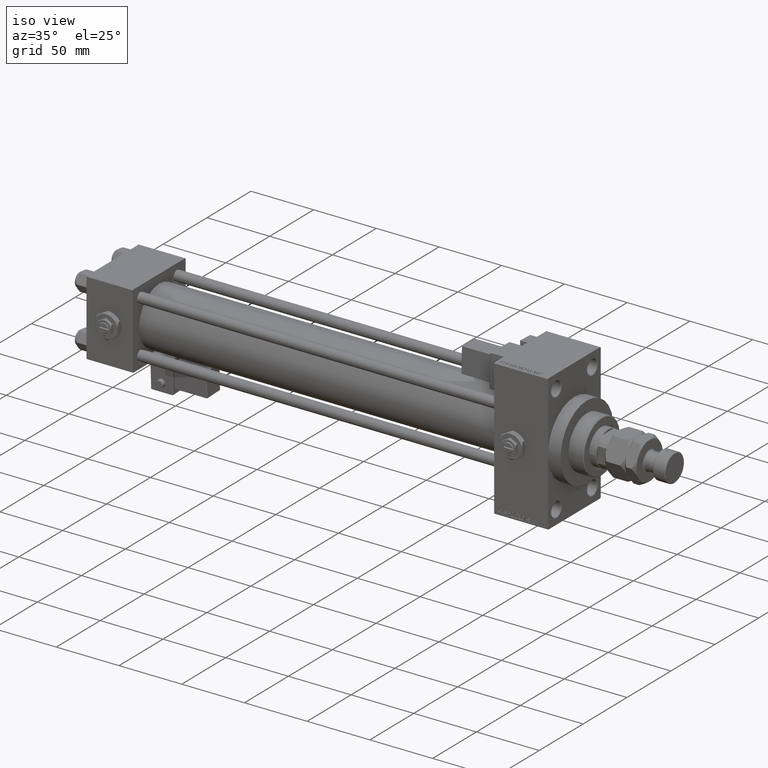
[diagram: clean part render]
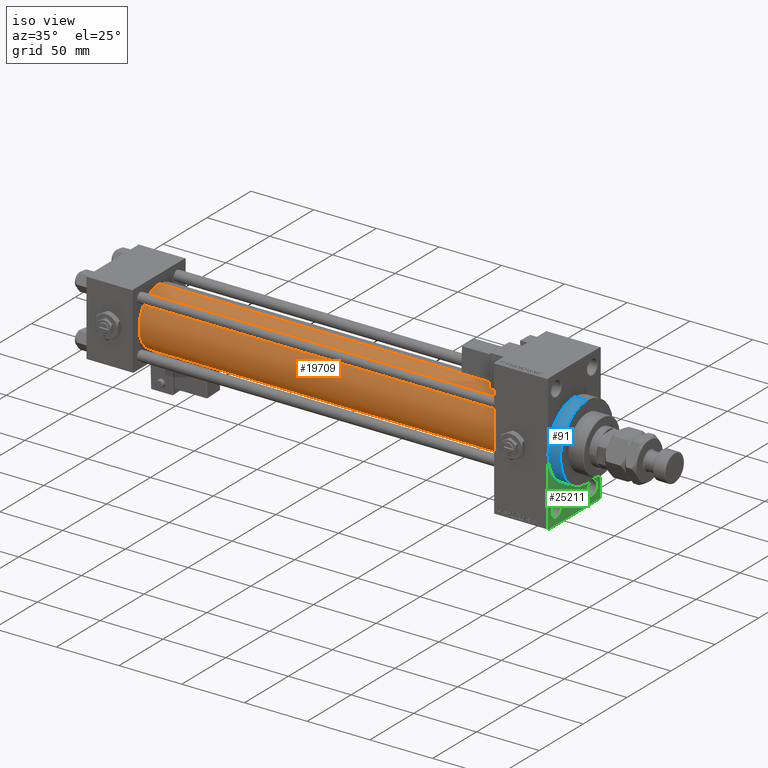
[diagram: same view with three faces highlighted in distinct colors, each labeled with its STEP entity id]
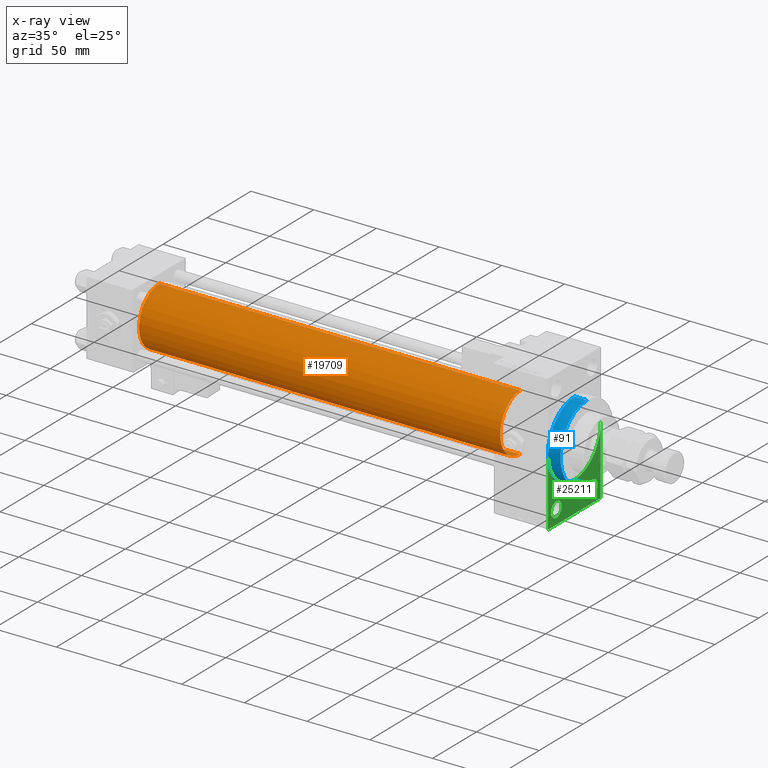
[diagram: x-ray of the same camera — body ghosted, the three highlighted faces saturated]
A machine part, iso view with three faces highlighted in distinct colors.
The next image is the same camera in x-ray (body ghosted, the three faces saturated) — at least one of them is partly hidden behind the body in this view.
Their STEP definitions:

[orange] entity #19709 — the highlighted cylindrical surface (edge-blend (fillet) strip) has radius 23 mm, axis along (-1, -0, -0).
#1526 = VERTEX_POINT ( 'NONE', #37944 ) ;
#1814 = AXIS2_PLACEMENT_3D ( 'NONE', #36916, #8387, #41212 ) ;
#4373 = VERTEX_POINT ( 'NONE', #14296 ) ;
#4509 = EDGE_CURVE ( 'NONE', #43570, #22785, #40632, .T. ) ;
#4996 = LINE ( 'NONE', #25175, #9830 ) ;
#7609 = FACE_OUTER_BOUND ( 'NONE', #17370, .T. ) ;
#8387 = DIRECTION ( 'NONE',  ( -1.000000000000000000, -0.000000000000000000, -0.000000000000000000 ) ) ;
#9403 = CARTESIAN_POINT ( 'NONE',  ( 324.9999999999999432, -2.602085213965210642E-15, 23.00000000000000000 ) ) ;
#9830 = VECTOR ( 'NONE', #37571, 1000.000000000000000 ) ;
#9858 = ORIENTED_EDGE ( 'NONE', *, *, #15599, .F. ) ;
#10787 = CIRCLE ( 'NONE', #40000, 23.00000000000000000 ) ;
#10871 = ORIENTED_EDGE ( 'NONE', *, *, #31379, .F. ) ;
#11706 = CARTESIAN_POINT ( 'NONE',  ( 36.99999999999997868, -2.602085213965210642E-15, 23.00000000000000000 ) ) ;
#14296 = CARTESIAN_POINT ( 'NONE',  ( 324.9999999999999432, 2.146024240737016609E-16, -23.00000000000000000 ) ) ;
#15599 = EDGE_CURVE ( 'NONE', #43570, #4373, #48038, .T. ) ;
#15659 = DIRECTION ( 'NONE',  ( 0.000000000000000000, 0.000000000000000000, 1.000000000000000000 ) ) ;
#17370 = EDGE_LOOP ( 'NONE', ( #10871, #9858, #39772, #36568 ) ) ;
#17969 = AXIS2_PLACEMENT_3D ( 'NONE', #18846, #26402, #18592 ) ;
#18592 = DIRECTION ( 'NONE',  ( 0.000000000000000000, 0.000000000000000000, -1.000000000000000000 ) ) ;
#18846 = CARTESIAN_POINT ( 'NONE',  ( 324.9999999999999432, -2.602085213965210642E-15, 0.000000000000000000 ) ) ;
#19709 = ADVANCED_FACE ( 'NONE', ( #7609 ), #28309, .T. ) ;
#22785 = VERTEX_POINT ( 'NONE', #11706 ) ;
#25175 = CARTESIAN_POINT ( 'NONE',  ( 324.9999999999999432, 2.146024240737016609E-16, -23.00000000000000000 ) ) ;
#26402 = DIRECTION ( 'NONE',  ( 1.000000000000000000, 0.000000000000000000, 0.000000000000000000 ) ) ;
#27988 = CARTESIAN_POINT ( 'NONE',  ( 324.9999999999999432, -2.602085213965210642E-15, 23.00000000000000000 ) ) ;
#28309 = CYLINDRICAL_SURFACE ( 'NONE', #1814, 23.00000000000000000 ) ;
#31379 = EDGE_CURVE ( 'NONE', #4373, #1526, #4996, .T. ) ;
#33525 = DIRECTION ( 'NONE',  ( -1.000000000000000000, -0.000000000000000000, -0.000000000000000000 ) ) ;
#33595 = EDGE_CURVE ( 'NONE', #22785, #1526, #10787, .T. ) ;
#36568 = ORIENTED_EDGE ( 'NONE', *, *, #33595, .T. ) ;
#36916 = CARTESIAN_POINT ( 'NONE',  ( 324.9999999999999432, -2.602085213965210642E-15, 0.000000000000000000 ) ) ;
#37571 = DIRECTION ( 'NONE',  ( -1.000000000000000000, -0.000000000000000000, -0.000000000000000000 ) ) ;
#37944 = CARTESIAN_POINT ( 'NONE',  ( 36.99999999999997868, 2.146024240737016609E-16, -23.00000000000000000 ) ) ;
#39093 = DIRECTION ( 'NONE',  ( 1.000000000000000000, -0.000000000000000000, 0.000000000000000000 ) ) ;
#39772 = ORIENTED_EDGE ( 'NONE', *, *, #4509, .T. ) ;
#40000 = AXIS2_PLACEMENT_3D ( 'NONE', #47927, #39093, #15659 ) ;
#40632 = LINE ( 'NONE', #27988, #46579 ) ;
#41212 = DIRECTION ( 'NONE',  ( 0.000000000000000000, 0.000000000000000000, 1.000000000000000000 ) ) ;
#43570 = VERTEX_POINT ( 'NONE', #9403 ) ;
#46579 = VECTOR ( 'NONE', #33525, 1000.000000000000000 ) ;
#47927 = CARTESIAN_POINT ( 'NONE',  ( 36.99999999999997868, -2.602085213965210642E-15, 0.000000000000000000 ) ) ;
#48038 = CIRCLE ( 'NONE', #17969, 23.00000000000000000 ) ;

[blue] entity #91 — the highlighted cylindrical surface (partial cylindrical patch) has radius 30 mm, axis along (-1, -0, -0).
#91 = ADVANCED_FACE ( 'NONE', ( #6323 ), #38341, .T. ) ;
#914 = EDGE_CURVE ( 'NONE', #20139, #34263, #23115, .T. ) ;
#2161 = ORIENTED_EDGE ( 'NONE', *, *, #11128, .F. ) ;
#2428 = ORIENTED_EDGE ( 'NONE', *, *, #41193, .T. ) ;
#3089 = EDGE_LOOP ( 'NONE', ( #2161, #30725, #33383, #2428, #19965 ) ) ;
#3137 = DIRECTION ( 'NONE',  ( 1.000000000000000000, 0.000000000000000000, 0.000000000000000000 ) ) ;
#4562 = AXIS2_PLACEMENT_3D ( 'NONE', #43777, #3137, #35712 ) ;
#5702 = EDGE_CURVE ( 'NONE', #48873, #17344, #39790, .T. ) ;
#5952 = DIRECTION ( 'NONE',  ( 1.000000000000000000, 0.000000000000000000, 0.000000000000000000 ) ) ;
#6323 = FACE_OUTER_BOUND ( 'NONE', #3089, .T. ) ;
#9709 = DIRECTION ( 'NONE',  ( 0.000000000000000000, 0.000000000000000000, -1.000000000000000000 ) ) ;
#11128 = EDGE_CURVE ( 'NONE', #26923, #17344, #17042, .T. ) ;
#12986 = CARTESIAN_POINT ( 'NONE',  ( 377.9999999999999432, 3.673940397442059178E-15, -30.00000000000000000 ) ) ;
#13972 = CARTESIAN_POINT ( 'NONE',  ( 367.9999999999999432, 0.000000000000000000, 0.000000000000000000 ) ) ;
#15668 = CARTESIAN_POINT ( 'NONE',  ( 367.9999999999999432, -30.00000000000000000, 0.000000000000000000 ) ) ;
#17042 = LINE ( 'NONE', #21607, #32500 ) ;
#17344 = VERTEX_POINT ( 'NONE', #50831 ) ;
#17883 = CARTESIAN_POINT ( 'NONE',  ( 377.9999999999999432, 0.000000000000000000, 0.000000000000000000 ) ) ;
#19965 = ORIENTED_EDGE ( 'NONE', *, *, #5702, .T. ) ;
#20139 = VERTEX_POINT ( 'NONE', #36066 ) ;
#21607 = CARTESIAN_POINT ( 'NONE',  ( 377.9999999999999432, 3.673940397442059178E-15, -30.00000000000000000 ) ) ;
#22180 = DIRECTION ( 'NONE',  ( 0.000000000000000000, 0.000000000000000000, 1.000000000000000000 ) ) ;
#22943 = AXIS2_PLACEMENT_3D ( 'NONE', #33645, #5952, #9709 ) ;
#23115 = LINE ( 'NONE', #47327, #34430 ) ;
#26923 = VERTEX_POINT ( 'NONE', #12986 ) ;
#30379 = DIRECTION ( 'NONE',  ( 1.000000000000000000, 0.000000000000000000, 0.000000000000000000 ) ) ;
#30725 = ORIENTED_EDGE ( 'NONE', *, *, #34648, .F. ) ;
#32500 = VECTOR ( 'NONE', #33455, 1000.000000000000000 ) ;
#33383 = ORIENTED_EDGE ( 'NONE', *, *, #914, .T. ) ;
#33455 = DIRECTION ( 'NONE',  ( -1.000000000000000000, -0.000000000000000000, -0.000000000000000000 ) ) ;
#33645 = CARTESIAN_POINT ( 'NONE',  ( 377.9999999999999432, 0.000000000000000000, 0.000000000000000000 ) ) ;
#34263 = VERTEX_POINT ( 'NONE', #51578 ) ;
#34430 = VECTOR ( 'NONE', #35504, 1000.000000000000000 ) ;
#34648 = EDGE_CURVE ( 'NONE', #20139, #26923, #46103, .T. ) ;
#35504 = DIRECTION ( 'NONE',  ( -1.000000000000000000, -0.000000000000000000, -0.000000000000000000 ) ) ;
#35712 = DIRECTION ( 'NONE',  ( 0.000000000000000000, 0.000000000000000000, -1.000000000000000000 ) ) ;
#36066 = CARTESIAN_POINT ( 'NONE',  ( 377.9999999999999432, 0.000000000000000000, 30.00000000000000000 ) ) ;
#38341 = CYLINDRICAL_SURFACE ( 'NONE', #38711, 30.00000000000000000 ) ;
#38711 = AXIS2_PLACEMENT_3D ( 'NONE', #17883, #42646, #22180 ) ;
#39168 = CIRCLE ( 'NONE', #44348, 30.00000000000000000 ) ;
#39790 = CIRCLE ( 'NONE', #4562, 30.00000000000000000 ) ;
#41193 = EDGE_CURVE ( 'NONE', #34263, #48873, #39168, .T. ) ;
#42646 = DIRECTION ( 'NONE',  ( -1.000000000000000000, -0.000000000000000000, -0.000000000000000000 ) ) ;
#43777 = CARTESIAN_POINT ( 'NONE',  ( 367.9999999999999432, 0.000000000000000000, 0.000000000000000000 ) ) ;
#44348 = AXIS2_PLACEMENT_3D ( 'NONE', #13972, #30379, #47842 ) ;
#46103 = CIRCLE ( 'NONE', #22943, 30.00000000000000000 ) ;
#47327 = CARTESIAN_POINT ( 'NONE',  ( 377.9999999999999432, 0.000000000000000000, 30.00000000000000000 ) ) ;
#47842 = DIRECTION ( 'NONE',  ( 0.000000000000000000, 0.000000000000000000, -1.000000000000000000 ) ) ;
#48873 = VERTEX_POINT ( 'NONE', #15668 ) ;
#50831 = CARTESIAN_POINT ( 'NONE',  ( 367.9999999999999432, 3.673940397442059178E-15, -30.00000000000000000 ) ) ;
#51578 = CARTESIAN_POINT ( 'NONE',  ( 367.9999999999999432, 0.000000000000000000, 30.00000000000000000 ) ) ;

[green] entity #25211 — the highlighted planar face has unit normal (-1, 0, 0).
#218 = CARTESIAN_POINT ( 'NONE',  ( 367.9999999999999432, 29.99999999999999645, -54.00000000000004974 ) ) ;
#864 = DIRECTION ( 'NONE',  ( 1.000000000000000000, 0.000000000000000000, 0.000000000000000000 ) ) ;
#1180 = CARTESIAN_POINT ( 'NONE',  ( 367.9999999999999432, 29.49999999999999645, -54.49999999999999289 ) ) ;
#1307 = CARTESIAN_POINT ( 'NONE',  ( 367.9999999999999432, 20.50000000000000000, -43.50000000000000000 ) ) ;
#1606 = CARTESIAN_POINT ( 'NONE',  ( 367.9999999999999432, 0.000000000000000000, 0.000000000000000000 ) ) ;
#1857 = EDGE_CURVE ( 'NONE', #20596, #29471, #49175, .T. ) ;
#2298 = DIRECTION ( 'NONE',  ( 0.000000000000000000, 0.7071067811865352493, -0.7071067811865597852 ) ) ;
#3137 = DIRECTION ( 'NONE',  ( 1.000000000000000000, 0.000000000000000000, 0.000000000000000000 ) ) ;
#3519 = EDGE_CURVE ( 'NONE', #33370, #5955, #33685, .T. ) ;
#4056 = CARTESIAN_POINT ( 'NONE',  ( 367.9999999999999432, -20.50000000000000000, -49.50000000000000000 ) ) ;
#4562 = AXIS2_PLACEMENT_3D ( 'NONE', #43777, #3137, #35712 ) ;
#5228 = VECTOR ( 'NONE', #16633, 1000.000000000000000 ) ;
#5702 = EDGE_CURVE ( 'NONE', #48873, #17344, #39790, .T. ) ;
#5955 = VERTEX_POINT ( 'NONE', #15980 ) ;
#6053 = EDGE_CURVE ( 'NONE', #17344, #27982, #44108, .T. ) ;
#6066 = ORIENTED_EDGE ( 'NONE', *, *, #3519, .T. ) ;
#6075 = CARTESIAN_POINT ( 'NONE',  ( 367.9999999999999432, -29.50000000000000355, -54.50000000000000000 ) ) ;
#6295 = AXIS2_PLACEMENT_3D ( 'NONE', #13298, #13841, #46375 ) ;
#8034 = DIRECTION ( 'NONE',  ( 0.000000000000000000, -1.000000000000000000, -1.156482317317871478E-16 ) ) ;
#8836 = CIRCLE ( 'NONE', #6295, 6.000000000000005329 ) ;
#11272 = EDGE_CURVE ( 'NONE', #5955, #33370, #30778, .T. ) ;
#11551 = EDGE_CURVE ( 'NONE', #27982, #29471, #50191, .T. ) ;
#12674 = DIRECTION ( 'NONE',  ( 0.000000000000000000, 0.000000000000000000, 1.000000000000000000 ) ) ;
#12735 = VECTOR ( 'NONE', #34345, 1000.000000000000000 ) ;
#12753 = CARTESIAN_POINT ( 'NONE',  ( 367.9999999999999432, -20.50000000000000000, -37.49999999999999289 ) ) ;
#12921 = CIRCLE ( 'NONE', #43869, 6.000000000000005329 ) ;
#13298 = CARTESIAN_POINT ( 'NONE',  ( 367.9999999999999432, -20.50000000000000000, -43.50000000000000000 ) ) ;
#13707 = DIRECTION ( 'NONE',  ( -1.000000000000000000, 0.000000000000000000, -0.000000000000000000 ) ) ;
#13803 = ORIENTED_EDGE ( 'NONE', *, *, #25407, .F. ) ;
#13841 = DIRECTION ( 'NONE',  ( -1.000000000000000000, 0.000000000000000000, -0.000000000000000000 ) ) ;
#14879 = AXIS2_PLACEMENT_3D ( 'NONE', #1606, #13707, #22583 ) ;
#15655 = AXIS2_PLACEMENT_3D ( 'NONE', #17371, #33792, #34335 ) ;
#15668 = CARTESIAN_POINT ( 'NONE',  ( 367.9999999999999432, -30.00000000000000000, 0.000000000000000000 ) ) ;
#15980 = CARTESIAN_POINT ( 'NONE',  ( 367.9999999999999432, 20.50000000000000000, -49.50000000000000000 ) ) ;
#16633 = DIRECTION ( 'NONE',  ( -0.000000000000000000, 0.7071067811865868746, 0.7071067811865081598 ) ) ;
#17076 = VERTEX_POINT ( 'NONE', #4056 ) ;
#17344 = VERTEX_POINT ( 'NONE', #50831 ) ;
#17371 = CARTESIAN_POINT ( 'NONE',  ( 367.9999999999999432, 20.50000000000000000, -43.50000000000000000 ) ) ;
#17469 = PLANE ( 'NONE',  #14879 ) ;
#19108 = EDGE_CURVE ( 'NONE', #17076, #40444, #12921, .T. ) ;
#20596 = VERTEX_POINT ( 'NONE', #1180 ) ;
#20881 = VERTEX_POINT ( 'NONE', #22368 ) ;
#21653 = ORIENTED_EDGE ( 'NONE', *, *, #1857, .T. ) ;
#21703 = ORIENTED_EDGE ( 'NONE', *, *, #5702, .F. ) ;
#21746 = DIRECTION ( 'NONE',  ( -1.000000000000000000, 0.000000000000000000, -0.000000000000000000 ) ) ;
#22368 = CARTESIAN_POINT ( 'NONE',  ( 367.9999999999999432, -30.00000000000000000, -53.99999999999998579 ) ) ;
#22527 = ORIENTED_EDGE ( 'NONE', *, *, #6053, .F. ) ;
#22583 = DIRECTION ( 'NONE',  ( -0.000000000000000000, 0.000000000000000000, 1.000000000000000000 ) ) ;
#23448 = CARTESIAN_POINT ( 'NONE',  ( 367.9999999999999432, 29.99999999999999645, -54.00000000000004974 ) ) ;
#24425 = ORIENTED_EDGE ( 'NONE', *, *, #31000, .T. ) ;
#25211 = ADVANCED_FACE ( 'NONE', ( #38474, #30666, #46801 ), #17469, .F. ) ;
#25407 = EDGE_CURVE ( 'NONE', #20596, #35436, #48910, .T. ) ;
#25595 = ORIENTED_EDGE ( 'NONE', *, *, #35866, .T. ) ;
#26505 = LINE ( 'NONE', #6075, #52753 ) ;
#26935 = ORIENTED_EDGE ( 'NONE', *, *, #11551, .F. ) ;
#27040 = CARTESIAN_POINT ( 'NONE',  ( 367.9999999999999432, 20.50000000000000000, -37.49999999999999289 ) ) ;
#27430 = ORIENTED_EDGE ( 'NONE', *, *, #11272, .T. ) ;
#27982 = VERTEX_POINT ( 'NONE', #37595 ) ;
#29471 = VERTEX_POINT ( 'NONE', #23448 ) ;
#29486 = AXIS2_PLACEMENT_3D ( 'NONE', #41764, #864, #29915 ) ;
#29749 = CARTESIAN_POINT ( 'NONE',  ( 367.9999999999999432, 29.99999999999999645, 54.49999999999999289 ) ) ;
#29915 = DIRECTION ( 'NONE',  ( 0.000000000000000000, 0.000000000000000000, -1.000000000000000000 ) ) ;
#30486 = DIRECTION ( 'NONE',  ( 0.000000000000000000, 0.000000000000000000, -1.000000000000000000 ) ) ;
#30616 = EDGE_LOOP ( 'NONE', ( #53120, #25595 ) ) ;
#30666 = FACE_BOUND ( 'NONE', #51093, .T. ) ;
#30778 = CIRCLE ( 'NONE', #36796, 6.000000000000005329 ) ;
#31000 = EDGE_CURVE ( 'NONE', #48873, #20881, #33988, .T. ) ;
#32488 = DIRECTION ( 'NONE',  ( 0.000000000000000000, 0.000000000000000000, 1.000000000000000000 ) ) ;
#33370 = VERTEX_POINT ( 'NONE', #27040 ) ;
#33685 = CIRCLE ( 'NONE', #15655, 6.000000000000005329 ) ;
#33792 = DIRECTION ( 'NONE',  ( -1.000000000000000000, 0.000000000000000000, -0.000000000000000000 ) ) ;
#33988 = LINE ( 'NONE', #51191, #45890 ) ;
#34335 = DIRECTION ( 'NONE',  ( 0.000000000000000000, 0.000000000000000000, 1.000000000000000000 ) ) ;
#34345 = DIRECTION ( 'NONE',  ( 0.000000000000000000, 0.000000000000000000, -1.000000000000000000 ) ) ;
#35436 = VERTEX_POINT ( 'NONE', #44153 ) ;
#35494 = VECTOR ( 'NONE', #8034, 1000.000000000000000 ) ;
#35712 = DIRECTION ( 'NONE',  ( 0.000000000000000000, 0.000000000000000000, -1.000000000000000000 ) ) ;
#35866 = EDGE_CURVE ( 'NONE', #40444, #17076, #8836, .T. ) ;
#36796 = AXIS2_PLACEMENT_3D ( 'NONE', #1307, #21746, #12674 ) ;
#37595 = CARTESIAN_POINT ( 'NONE',  ( 367.9999999999999432, 30.00000000000000000, 0.000000000000000000 ) ) ;
#38474 = FACE_BOUND ( 'NONE', #30616, .T. ) ;
#38556 = EDGE_CURVE ( 'NONE', #20881, #35436, #26505, .T. ) ;
#39467 = EDGE_LOOP ( 'NONE', ( #24425, #51760, #13803, #21653, #26935, #22527, #21703 ) ) ;
#39790 = CIRCLE ( 'NONE', #4562, 30.00000000000000000 ) ;
#40444 = VERTEX_POINT ( 'NONE', #12753 ) ;
#41599 = CARTESIAN_POINT ( 'NONE',  ( 367.9999999999999432, -20.50000000000000000, -43.50000000000000000 ) ) ;
#41764 = CARTESIAN_POINT ( 'NONE',  ( 367.9999999999999432, 0.000000000000000000, 0.000000000000000000 ) ) ;
#43777 = CARTESIAN_POINT ( 'NONE',  ( 367.9999999999999432, 0.000000000000000000, 0.000000000000000000 ) ) ;
#43869 = AXIS2_PLACEMENT_3D ( 'NONE', #41599, #49138, #32488 ) ;
#44108 = CIRCLE ( 'NONE', #29486, 30.00000000000000000 ) ;
#44153 = CARTESIAN_POINT ( 'NONE',  ( 367.9999999999999432, -29.50000000000000355, -54.50000000000000000 ) ) ;
#44888 = CARTESIAN_POINT ( 'NONE',  ( 367.9999999999999432, 29.99999999999999645, -54.49999999999999289 ) ) ;
#45890 = VECTOR ( 'NONE', #30486, 1000.000000000000000 ) ;
#46375 = DIRECTION ( 'NONE',  ( 0.000000000000000000, 0.000000000000000000, 1.000000000000000000 ) ) ;
#46801 = FACE_OUTER_BOUND ( 'NONE', #39467, .T. ) ;
#48873 = VERTEX_POINT ( 'NONE', #15668 ) ;
#48910 = LINE ( 'NONE', #44888, #35494 ) ;
#49138 = DIRECTION ( 'NONE',  ( -1.000000000000000000, 0.000000000000000000, -0.000000000000000000 ) ) ;
#49175 = LINE ( 'NONE', #218, #5228 ) ;
#50191 = LINE ( 'NONE', #29749, #12735 ) ;
#50831 = CARTESIAN_POINT ( 'NONE',  ( 367.9999999999999432, 3.673940397442059178E-15, -30.00000000000000000 ) ) ;
#51093 = EDGE_LOOP ( 'NONE', ( #27430, #6066 ) ) ;
#51191 = CARTESIAN_POINT ( 'NONE',  ( 367.9999999999999432, -30.00000000000000000, 54.50000000000000000 ) ) ;
#51760 = ORIENTED_EDGE ( 'NONE', *, *, #38556, .T. ) ;
#52753 = VECTOR ( 'NONE', #2298, 1000.000000000000000 ) ;
#53120 = ORIENTED_EDGE ( 'NONE', *, *, #19108, .T. ) ;